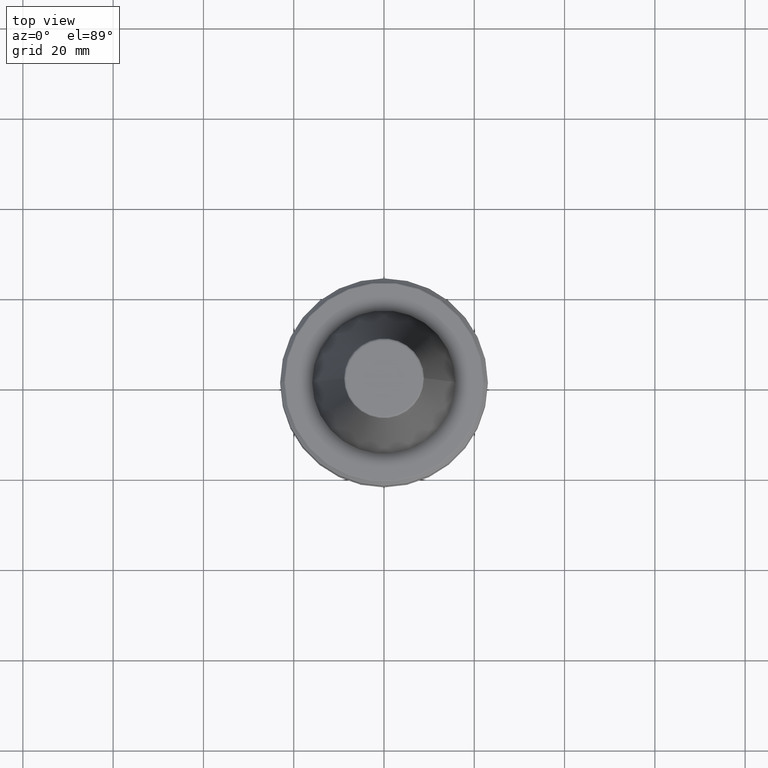
[diagram: clean part render]
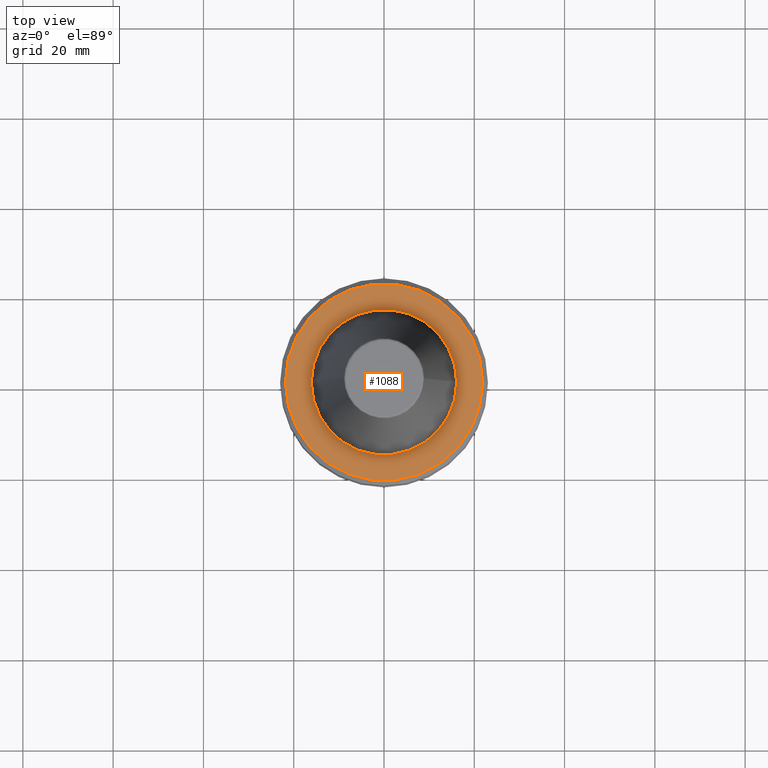
[diagram: same view with one face highlighted and labeled with its STEP entity id]
A machine part, top view. The second image highlights one B-rep face of the part: STEP entity #1088.
In plain terms, the highlighted planar face has unit normal (0, -0, 1).
Its self-contained STEP definition (entity closure, byte-faithful):
#21 = CARTESIAN_POINT ( 'NONE',  ( 0.0000000000000000000, 0.0000000000000000000, -2.000000000000001800 ) ) ;
#45 = CIRCLE ( 'NONE', #910, 21.83431457505075800 ) ;
#99 = CIRCLE ( 'NONE', #387, 16.10000000000000100 ) ;
#120 = CARTESIAN_POINT ( 'NONE',  ( 0.0000000000000000000, 0.0000000000000000000, -2.000000000000001800 ) ) ;
#180 = DIRECTION ( 'NONE',  ( -0.0000000000000000000, -0.0000000000000000000, 1.000000000000000000 ) ) ;
#235 = ORIENTED_EDGE ( 'NONE', *, *, #1242, .F. ) ;
#237 = DIRECTION ( 'NONE',  ( 1.000000000000000000, 0.0000000000000000000, 0.0000000000000000000 ) ) ;
#308 = FACE_BOUND ( 'NONE', #716, .T. ) ;
#320 = CARTESIAN_POINT ( 'NONE',  ( 0.0000000000000000000, -3.025162734399607200E-016, -2.000000000000003100 ) ) ;
#334 = CIRCLE ( 'NONE', #359, 21.83431457505075800 ) ;
#359 = AXIS2_PLACEMENT_3D ( 'NONE', #1068, #391, #1183 ) ;
#382 = AXIS2_PLACEMENT_3D ( 'NONE', #856, #180, #976 ) ;
#387 = AXIS2_PLACEMENT_3D ( 'NONE', #120, #908, #237 ) ;
#391 = DIRECTION ( 'NONE',  ( -0.0000000000000000000, -0.0000000000000000000, 1.000000000000000000 ) ) ;
#428 = DIRECTION ( 'NONE',  ( 0.0000000000000000000, -0.0000000000000000000, 1.000000000000000000 ) ) ;
#474 = VERTEX_POINT ( 'NONE', #734 ) ;
#543 = AXIS2_PLACEMENT_3D ( 'NONE', #320, #428, #1221 ) ;
#655 = EDGE_CURVE ( 'NONE', #1004, #474, #334, .T. ) ;
#706 = CARTESIAN_POINT ( 'NONE',  ( 16.10000000000000100, 0.0000000000000000000, -2.000000000000002200 ) ) ;
#716 = EDGE_LOOP ( 'NONE', ( #235, #1272 ) ) ;
#732 = EDGE_CURVE ( 'NONE', #1007, #936, #99, .T. ) ;
#734 = CARTESIAN_POINT ( 'NONE',  ( 21.83431457505075800, 0.0000000000000000000, -2.000000000000001800 ) ) ;
#786 = CARTESIAN_POINT ( 'NONE',  ( -16.10000000000000100, 1.971681346627238900E-015, -2.000000000000002200 ) ) ;
#799 = DIRECTION ( 'NONE',  ( -0.0000000000000000000, -0.0000000000000000000, 1.000000000000000000 ) ) ;
#856 = CARTESIAN_POINT ( 'NONE',  ( 0.0000000000000000000, 0.0000000000000000000, -2.000000000000001800 ) ) ;
#873 = DIRECTION ( 'NONE',  ( 1.000000000000000000, 0.0000000000000000000, 0.0000000000000000000 ) ) ;
#908 = DIRECTION ( 'NONE',  ( -0.0000000000000000000, -0.0000000000000000000, 1.000000000000000000 ) ) ;
#910 = AXIS2_PLACEMENT_3D ( 'NONE', #21, #799, #873 ) ;
#936 = VERTEX_POINT ( 'NONE', #706 ) ;
#976 = DIRECTION ( 'NONE',  ( 1.000000000000000000, 0.0000000000000000000, 0.0000000000000000000 ) ) ;
#991 = PLANE ( 'NONE',  #543 ) ;
#1004 = VERTEX_POINT ( 'NONE', #1023 ) ;
#1007 = VERTEX_POINT ( 'NONE', #786 ) ;
#1023 = CARTESIAN_POINT ( 'NONE',  ( -21.83431457505075800, 2.691251466715941100E-015, -2.000000000000001800 ) ) ;
#1043 = EDGE_CURVE ( 'NONE', #474, #1004, #45, .T. ) ;
#1068 = CARTESIAN_POINT ( 'NONE',  ( 0.0000000000000000000, 0.0000000000000000000, -2.000000000000001800 ) ) ;
#1075 = ORIENTED_EDGE ( 'NONE', *, *, #655, .T. ) ;
#1088 = ADVANCED_FACE ( 'NONE', ( #1328, #308 ), #991, .T. ) ;
#1141 = ORIENTED_EDGE ( 'NONE', *, *, #1043, .T. ) ;
#1183 = DIRECTION ( 'NONE',  ( 1.000000000000000000, 0.0000000000000000000, 0.0000000000000000000 ) ) ;
#1221 = DIRECTION ( 'NONE',  ( 1.000000000000000000, 0.0000000000000000000, 0.0000000000000000000 ) ) ;
#1242 = EDGE_CURVE ( 'NONE', #936, #1007, #1410, .T. ) ;
#1272 = ORIENTED_EDGE ( 'NONE', *, *, #732, .F. ) ;
#1281 = EDGE_LOOP ( 'NONE', ( #1141, #1075 ) ) ;
#1328 = FACE_OUTER_BOUND ( 'NONE', #1281, .T. ) ;
#1410 = CIRCLE ( 'NONE', #382, 16.10000000000000100 ) ;